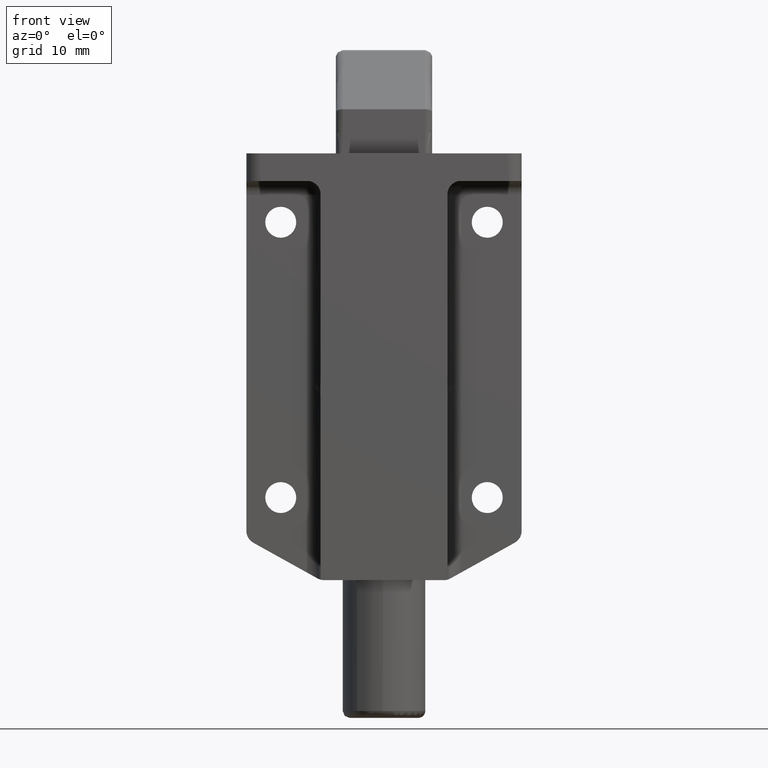
[diagram: clean part render]
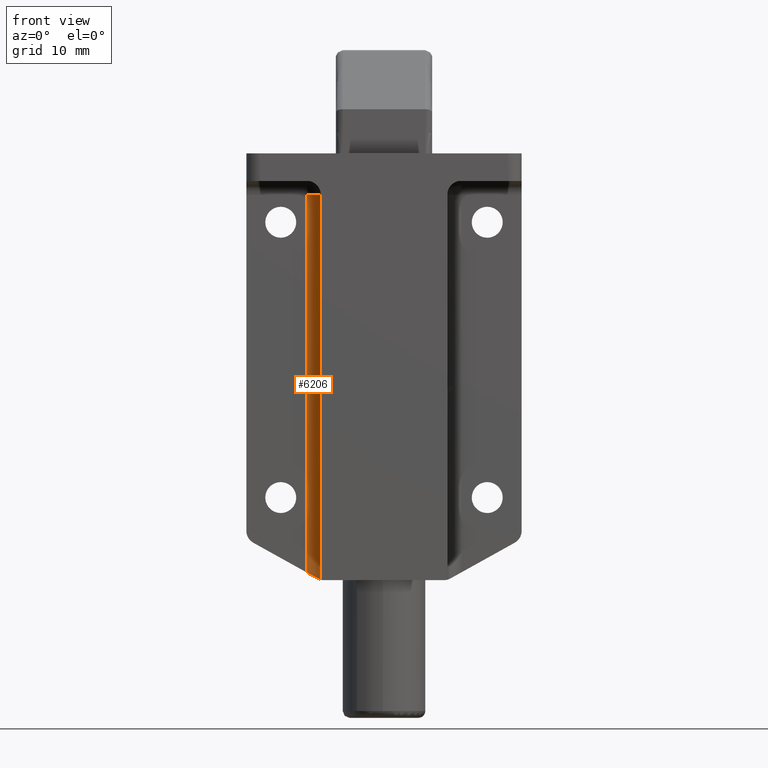
[diagram: same view with one face highlighted and labeled with its STEP entity id]
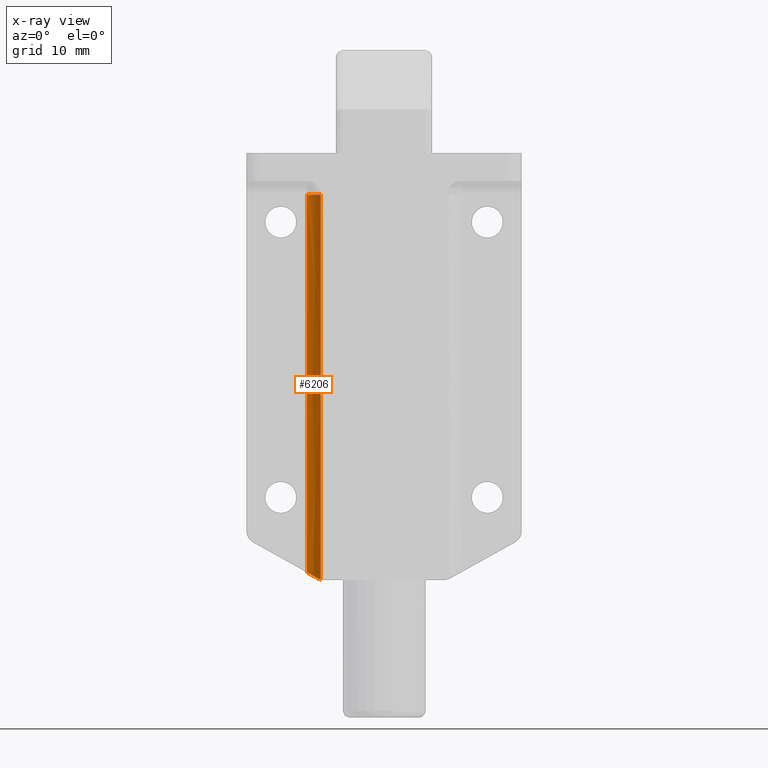
[diagram: x-ray of the same camera — body ghosted, the highlighted face saturated]
A machine part, front view. The second image highlights one B-rep face of the part: STEP entity #6206.
The next image is the same camera in x-ray: the body ghosted, the highlighted face saturated — about 0% of this face is hidden behind the body in this view.
In plain terms, the highlighted face is a freeform B-spline surface patch.
Its self-contained STEP definition (entity closure, byte-faithful):
#4320=CARTESIAN_POINT('',(9.199999999999999,6.0,-32.200000000000003));
#4321=VERTEX_POINT('',#4320);
#4335=CARTESIAN_POINT('',(9.199999999999999,5.999999999999870,-35.799999999999997));
#4336=VERTEX_POINT('',#4335);
#4337=CARTESIAN_POINT('',(9.199999999999999,6.0,-32.200000000000003));
#4338=CARTESIAN_POINT('',(9.200000000000001,5.902285140686232,-32.330286479085053));
#4339=CARTESIAN_POINT('',(9.207012848471949,5.816680078778169,-32.466357515512257));
#4340=CARTESIAN_POINT('',(9.226293446609308,5.668207262322841,-32.749836201139388));
#4341=CARTESIAN_POINT('',(9.238621641533461,5.605346346947696,-32.897243722404227));
#4342=CARTESIAN_POINT('',(9.253251473413030,5.541368928315480,-33.089031600977393));
#4343=CARTESIAN_POINT('',(9.256145040449971,5.529296533046713,-33.127821339104017));
#4344=CARTESIAN_POINT('',(9.261720843697654,5.506839002137260,-33.205485398406168));
#4345=CARTESIAN_POINT('',(9.264409078695772,5.496426150622636,-33.244435606497383));
#4346=CARTESIAN_POINT('',(9.272061902466788,5.467599739173294,-33.361640135681093));
#4347=CARTESIAN_POINT('',(9.276609765933957,5.451594243577908,-33.440247977154741));
#4348=CARTESIAN_POINT('',(9.287868923218314,5.413084154315271,-33.677495647892542));
#4349=CARTESIAN_POINT('',(9.292114842356090,5.400021478927951,-33.837553713086642));
#4350=CARTESIAN_POINT('',(9.292123275534543,5.399994663128256,-34.040115133424322));
#4351=CARTESIAN_POINT('',(9.291864654401609,5.400815168209077,-34.080849698559518));
#4352=CARTESIAN_POINT('',(9.290836642434279,5.404098805254944,-34.161933197112432));
#4353=CARTESIAN_POINT('',(9.290068762902720,5.406557233369426,-34.202305777563197));
#4354=CARTESIAN_POINT('',(9.287047438726024,5.416339919867967,-34.322926346310688));
#4355=CARTESIAN_POINT('',(9.284071689919285,5.426067473551335,-34.402677716570089));
#4356=CARTESIAN_POINT('',(9.272785758231350,5.464682707675084,-34.640006605079691));
#4357=CARTESIAN_POINT('',(9.262044504642828,5.502936316437705,-34.795668029202552));
#4358=CARTESIAN_POINT('',(9.244522883899313,5.579529786688823,-35.025409272267261));
#4359=CARTESIAN_POINT('',(9.238458970792514,5.608354486105116,-35.101454595870273));
#4360=CARTESIAN_POINT('',(9.226905799860091,5.671474970218995,-35.249655177987819));
#4361=CARTESIAN_POINT('',(9.221390836213848,5.705870437301857,-35.322149993952792));
#4362=CARTESIAN_POINT('',(9.206937185162385,5.817445058139490,-35.534949119914756));
#4363=CARTESIAN_POINT('',(9.200000000000003,5.902949654655479,-35.670599539540518));
#4364=CARTESIAN_POINT('',(9.199999999999999,5.999999999999870,-35.799999999999997));
#4365=B_SPLINE_CURVE_WITH_KNOTS('',3,(#4337,#4338,#4339,#4340,#4341,#4342,#4343,#4344,#4345,#4346,#4347,#4348,#4349,#4350,#4351,#4352,#4353,#4354,#4355,#4356,#4357,#4358,#4359,#4360,#4361,#4362,#4363,#4364),.UNSPECIFIED.,.F.,.U.,(4,2,2,2,2,2,2,2,2,2,2,2,2,4),(0.0,0.125000000000013,0.250000000000027,0.281250000000028,0.312500000000029,0.375000000000031,0.500000000000034,0.531250000000031,0.562500000000028,0.625000000000022,0.750000000000009,0.812500000000006,0.875000000000002,1.0),.UNSPECIFIED.);
#4366=EDGE_CURVE('',#4321,#4336,#4365,.T.);
#5143=CARTESIAN_POINT('',(9.199999999999999,6.0,-6.0));
#5144=VERTEX_POINT('',#5143);
#5145=CARTESIAN_POINT('',(11.199999999999999,4.0,-6.0));
#5146=VERTEX_POINT('',#5145);
#5147=CARTESIAN_POINT('',(9.199999999999999,6.0,-6.0));
#5148=CARTESIAN_POINT('',(9.199999999999999,4.000000000000000,-6.0));
#5149=CARTESIAN_POINT('',(11.199999999999999,4.0,-6.0));
#5157=(BOUNDED_CURVE()B_SPLINE_CURVE(2,(#5147,#5148,#5149),.UNSPECIFIED.,.F.,.U.)CURVE()GEOMETRIC_REPRESENTATION_ITEM()QUASI_UNIFORM_CURVE()RATIONAL_B_SPLINE_CURVE((1.0,0.707106781186548,1.0))REPRESENTATION_ITEM(''));
#5158=EDGE_CURVE('',#5144,#5146,#5157,.T.);
#5607=CARTESIAN_POINT('',(11.199999999999999,4.0,-60.889527885987597));
#5608=VERTEX_POINT('',#5607);
#5609=CARTESIAN_POINT('',(11.199999999999999,4.0,-6.0));
#5610=CARTESIAN_POINT('',(11.199999999999999,4.0,-60.889527885987597));
#5611=QUASI_UNIFORM_CURVE('',1,(#5609,#5610),.UNSPECIFIED.,.F.,.U.);
#5612=EDGE_CURVE('',#5146,#5608,#5611,.T.);
#6056=CARTESIAN_POINT('',(9.653000063813421,4.732407321952790,-61.748999964546897));
#6057=VERTEX_POINT('',#6056);
#6058=CARTESIAN_POINT('',(11.199999999999999,4.0,-60.889527885987597));
#6059=CARTESIAN_POINT('',(10.253125595133206,4.000000000000000,-61.415586157774875));
#6060=CARTESIAN_POINT('',(9.653000063813478,4.732407321952790,-61.748999964546741));
#6068=(BOUNDED_CURVE()B_SPLINE_CURVE(2,(#6058,#6059,#6060),.UNSPECIFIED.,.F.,.U.)CURVE()GEOMETRIC_REPRESENTATION_ITEM()QUASI_UNIFORM_CURVE()RATIONAL_B_SPLINE_CURVE((1.0,0.903824191705334,1.0))REPRESENTATION_ITEM(''));
#6069=EDGE_CURVE('',#5608,#6057,#6068,.T.);
#6097=CARTESIAN_POINT('',(9.199999999999999,6.0,-61.932198666764812));
#6098=VERTEX_POINT('',#6097);
#6104=CARTESIAN_POINT('',(9.653000063813410,4.732407321952870,-61.748999964546897));
#6105=CARTESIAN_POINT('',(9.582964786595865,4.817880022499918,-61.787909707892211));
#6106=CARTESIAN_POINT('',(9.519508477312968,4.909733932529965,-61.817758665156568));
#6107=CARTESIAN_POINT('',(9.435533624005300,5.056685963260893,-61.853395621040342));
#6108=CARTESIAN_POINT('',(9.409411014168944,5.107204756573762,-61.863730329520152));
#6109=CARTESIAN_POINT('',(9.361171240324600,5.211329564739082,-61.881838191648228));
#6110=CARTESIAN_POINT('',(9.338997131880062,5.265152151993991,-61.889626894566447));
#6111=CARTESIAN_POINT('',(9.280061489861478,5.428013761733883,-61.909419983199832));
#6112=CARTESIAN_POINT('',(9.250354534926323,5.539290142989008,-61.918125965440957));
#6113=CARTESIAN_POINT('',(9.220275876409760,5.710111836336465,-61.926685978528397));
#6114=CARTESIAN_POINT('',(9.212669245923495,5.767773016271315,-61.928770568757578));
#6115=CARTESIAN_POINT('',(9.202502495383172,5.884169878185552,-61.931534400766530));
#6116=CARTESIAN_POINT('',(9.200000000000001,5.942177256188646,-61.932198666764798));
#6117=CARTESIAN_POINT('',(9.199999999999999,6.0,-61.932198666764783));
#6118=B_SPLINE_CURVE_WITH_KNOTS('',3,(#6104,#6105,#6106,#6107,#6108,#6109,#6110,#6111,#6112,#6113,#6114,#6115,#6116,#6117),.UNSPECIFIED.,.F.,.U.,(4,2,2,2,2,2,4),(0.0,0.250000000000002,0.375000000000002,0.500000000000002,0.750000000000001,0.875000000000000,1.0),.UNSPECIFIED.);
#6119=EDGE_CURVE('',#6057,#6098,#6118,.T.);
#6175=CARTESIAN_POINT('',(9.200685350048886,6.052353896615749,-4.601695033330878));
#6176=CARTESIAN_POINT('',(9.200685350048886,6.052353896615749,-63.365461257600650));
#6177=CARTESIAN_POINT('',(9.143551097608020,3.870484822811764,-4.601695033330878));
#6178=CARTESIAN_POINT('',(9.143551097608020,3.870484822811764,-63.365461257600650));
#6179=CARTESIAN_POINT('',(11.322097079069710,4.003730403156267,-4.601695033330878));
#6180=CARTESIAN_POINT('',(11.322097079069710,4.003730403156267,-63.365461257600650));
#6188=(BOUNDED_SURFACE()B_SPLINE_SURFACE(1,2,((#6175,#6177,#6179),(#6176,#6178,#6180)),.UNSPECIFIED.,.F.,.F.,.U.)B_SPLINE_SURFACE_WITH_KNOTS((2,2),(3,3),(0.0,58.763766224269773),(0.0,3.520084247134669),.UNSPECIFIED.)GEOMETRIC_REPRESENTATION_ITEM()RATIONAL_B_SPLINE_SURFACE(((1.0,0.675590207615660,1.0),(1.0,0.675590207615660,1.0)))REPRESENTATION_ITEM('')SURFACE());
#6189=ORIENTED_EDGE('',*,*,#4366,.F.);
#6190=CARTESIAN_POINT('',(9.199999999999999,6.0,-6.0));
#6191=CARTESIAN_POINT('',(9.199999999999999,6.0,-32.200000000000003));
#6192=QUASI_UNIFORM_CURVE('',1,(#6190,#6191),.UNSPECIFIED.,.F.,.U.);
#6193=EDGE_CURVE('',#5144,#4321,#6192,.T.);
#6194=ORIENTED_EDGE('',*,*,#6193,.F.);
#6195=ORIENTED_EDGE('',*,*,#5158,.T.);
#6196=ORIENTED_EDGE('',*,*,#5612,.T.);
#6197=ORIENTED_EDGE('',*,*,#6069,.T.);
#6198=ORIENTED_EDGE('',*,*,#6119,.T.);
#6199=CARTESIAN_POINT('',(9.199999999999999,5.999999999999870,-35.799999999999997));
#6200=CARTESIAN_POINT('',(9.199999999999999,6.0,-61.932198666764812));
#6201=QUASI_UNIFORM_CURVE('',1,(#6199,#6200),.UNSPECIFIED.,.F.,.U.);
#6202=EDGE_CURVE('',#4336,#6098,#6201,.T.);
#6203=ORIENTED_EDGE('',*,*,#6202,.F.);
#6204=EDGE_LOOP('',(#6189,#6194,#6195,#6196,#6197,#6198,#6203));
#6205=FACE_OUTER_BOUND('',#6204,.T.);
#6206=ADVANCED_FACE('',(#6205),#6188,.F.);